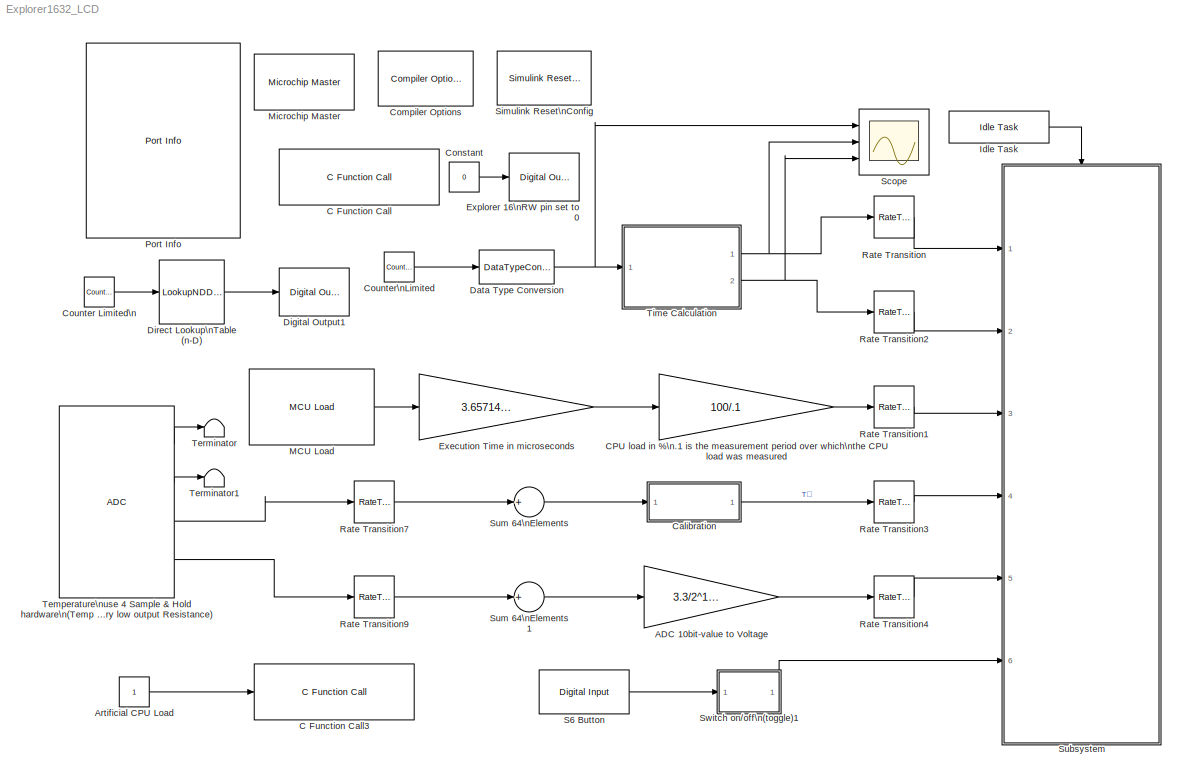
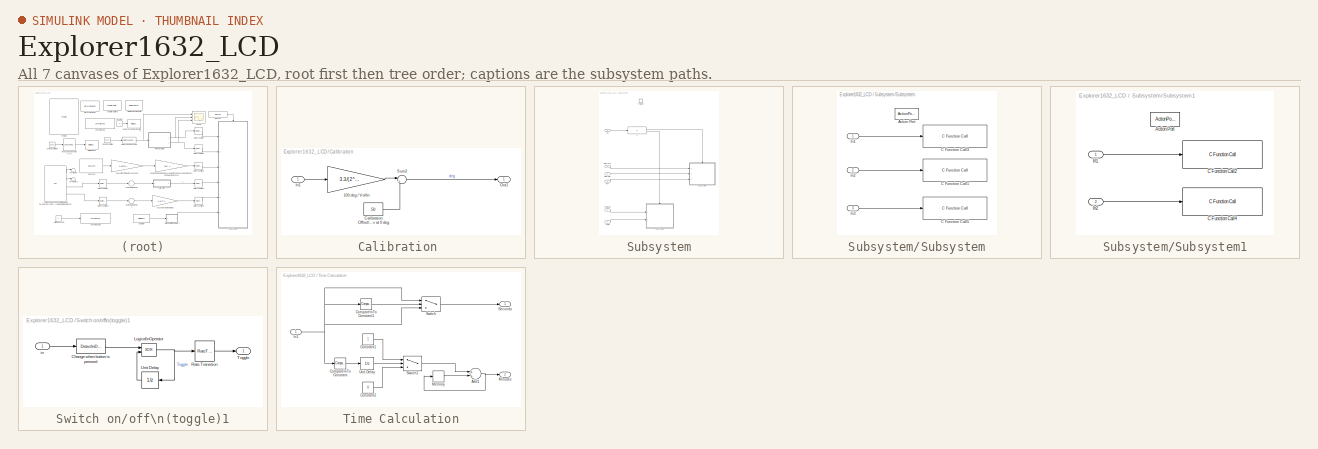
[diagram: thumbnail index - all 7 canvases of the model, root first then tree order]
MODEL Explorer1632_LCD
KIND model
BLOCK [Gain] ADC 10bit-value to Voltage
  Gain = 3.3/2^10 / 64
  OutDataTypeMode = double
  OutDataTypeStr = double
  ParamDataTypeStr = Inherit: Inherit via internal rule
  ParameterDataTypeMode = Inherit via internal rule
  SID = 243
  SaturateOnIntegerOverflow = off
BLOCK [Constant] Artificial CPU Load
  OutDataTypeMode = Inherit via back propagation
  OutDataTypeStr = Inherit: Inherit via back propagation
  SID = 239
BLOCK [Reference] C Function Call  REF=MCHP_Blockset/User Functions/C Function Call
  AddHeaderDeclaration = off
  DataCollected = s.chksm={ '168203-Apr-2017 17:13:43'};s.File1=reshape({ '  void  LCD_StartUp()','  void  PrintMinutes(unsigned int minutes)','  void  PrintSeconds(unsigned int seconds)','  void  PrintVoltage(double v)','  void  PrintTemperature(double temp)','  void  PrintCPU(double CPU_Load)'},1,6);
  FctReturnBlockOut = off
  Function1 = void LCD_StartUp()
  Function1Type = only once at power-up time
  ListFunctions1 = Custom Function
  MCHP_CRC = 1481661
  MCHP_MASTERLINK = Explorer1632_LCD/Microchip Master
  MCHP_PORT = {C Function LCD_StartUp}{CFct}10:1:B15;{C Function LCD_StartUp}{CFct}10:1:D4;{C Function LCD_StartUp}{CFct}10:1:E4;{C Function LCD_StartUp}{CFct}10:1:E5;{C Function LCD_StartUp}{CFct}10:1:E6;{C Function LCD_StartUp}{CFct}10:1:E7;
  ORDERING = None
  ParseFilesChkbx = on
  PinAnalogInput = []
  PinDigitalInput = []
  PinDigitalOutput = [B15 D4 E[4:7]]
  Ports = []
  SID = 54
  S_INPUT = []
  S_INPUT_Size = []
  S_ListCustomDatatype = S.S_ListCustomDatatype={};
  S_OUTPUT = []
  S_OUTPUT_Size = []
  SampleTime = 1
  SourceBlock = MCHP_Blockset/User Functions/C Function Call
  SourceType = C Function Call
  UserData = DataTag0
  UserDataPersistent = on
BLOCK [Reference] C Function Call3  REF=MCHP_Blockset/User Functions/C Function Call
  AddHeaderDeclaration = off
  DataCollected = 0
  Fct1BlockIn = t_us
  FctReturnBlockOut = off
  Function1 = extern void __delay_us(unsigned long t_us);
  Function1Type = when block is updated (default)
  ListFunctions1 = Custom Function
  MCHP_CRC = 972831
  MCHP_MASTERLINK = Explorer1632_LCD/Microchip Master
  ORDERING = None
  ParseFilesChkbx = off
  PinAnalogInput = []
  PinDigitalInput = []
  PinDigitalOutput = []
  Ports = [1]
  SID = 238
  S_INPUT = [7]
  S_INPUT_Size = [0  0  0  0  0  0  0  0  0  0]
  S_ListCustomDatatype = S.S_ListCustomDatatype={};
  S_OUTPUT = []
  S_OUTPUT_Size = []
  SampleTime = .001
  SourceBlock = MCHP_Blockset/User Functions/C Function Call
  SourceType = C Function Call
  UserData = DataTag1
  UserDataPersistent = on
BLOCK [Gain] CPU load in %\n.1 is the measurement period over which\nthe CPU load was measured
  Gain = 100/.1
  OutDataTypeMode = double
  OutDataTypeStr = double
  ParamDataTypeStr = Inherit: Inherit from 'Gain'
  ParameterDataTypeMode = Inherit from 'Gain'
  SID = 282
  SaturateOnIntegerOverflow = off
BLOCK [SubSystem] Calibration 
  FunctionWithSeparateData = off
  MaskHideContents = off
  MinAlgLoopOccurrences = off
  Opaque = off
  Ports = [1, 1]
  PropExecContextOutsideSubsystem = off
  RTWSystemCode = Auto
  RequestExecContextInheritance = off
  SID = 244
BLOCK [Gain] Calibration /100 deg // Volt\n
  Gain = 3.3/(2^16) * 100
  OutDataTypeMode = single
  OutDataTypeStr = single
  ParamDataTypeStr = Inherit: Inherit via internal rule
  ParameterDataTypeMode = Inherit via internal rule
  SID = 246
  SaturateOnIntegerOverflow = off
BLOCK [Constant] Calibration /Calibration Offset\n500 mv at 0 deg
  OutDataTypeMode = Inherit via back propagation
  OutDataTypeStr = Inherit: Inherit via back propagation
  SID = 247
  SampleTime = -1
  Value = 50
BLOCK [Inport] Calibration /In1
  IconDisplay = Port number
  SID = 245
BLOCK [Outport] Calibration /Out1
  IconDisplay = Port number
  SID = 249
BLOCK [Sum] Calibration /Sum2
  AccumDataTypeStr = Inherit: Same as first input
  IconShape = round
  InputSameDT = off
  Inputs = |+-
  OutDataTypeMode = Inherit via internal rule
  OutDataTypeStr = Inherit: Inherit via internal rule
  Ports = [2, 1]
  SID = 248
  SaturateOnIntegerOverflow = off
BLOCK [Reference] Compiler Options  REF=MCHP_Blockset/System Configuration/Compiler Options
  AssemblyListing = off
  COMP_LIST = Dynamic Options
  COMP_LIST_TXT = xc16 - v1.36
  DEBUG_INFO = off
  HEAP_SIZE = 0
  LATEST_CMPLR = on
  MAGGREGATE = off
  MCHP_MASTERLINK = Explorer1632_LCD/Microchip Master
  MCHP_MULTITHREAD_COMPILATION = on
  MCODE = is less than 32768 (faster)
  MCONST = in data memory
  MDATA = Use only memory below address 8192 (faster)
  MLARGEARRAY = off
  MPLAB_LINKLIB = default
  MPLAB_LINKLIB1 = default
  MSCALAR = Use only memory below address 8192 (faster)
  NO_EDS_WARN = on
  OMF = elf
  OPTIMIZATION_FLTO = on
  OPTIMIZATION_LEVEL = 1
  OPTIMIZATION_REORDER = off
  PRINT_STATISTICS = off
  PROCEDURAL_ABSTRACTION = off
  Ports = []
  Priority = 1
  ProduceHexOutput = off
  SID = 19
  SourceBlock = MCHP_Blockset/System Configuration/Compiler Options
  UNROLL_LOOPS = on
  USE_64BIT_DOUBLE = off
  UseCustom_LinkerScript = off
BLOCK [Constant] Constant
  OutDataType = fixdt(1, 16)
  OutDataTypeMode = Inherit via back propagation
  OutDataTypeStr = Inherit: Inherit via back propagation
  OutScaling = 2^0
  SID = 284
  Value = 0
BLOCK [Reference] Counter Limited\n  REF=simulink/Sources/Counter\nLimited
  FunctionWithSeparateData = off
  Ports = [0, 1]
  RTWMemSecDataConstants = Inherit from model
  RTWMemSecDataInternal = Inherit from model
  RTWMemSecDataParameters = Inherit from model
  RTWMemSecFuncExecute = Inherit from model
  RTWMemSecFuncInitTerm = Inherit from model
  SID = 240
  ShowPortLabels = FromPortIcon
  SourceBlock = simulink/Sources/Counter\nLimited
  SourceType = Counter Limited
  SystemSampleTime = -1
  tsamp = .08
  uplimit = 11
BLOCK [Reference] Counter\nLimited  REF=simulink/Sources/Counter\nLimited
  FunctionWithSeparateData = off
  Ports = [0, 1]
  RTWMemSecDataConstants = Inherit from model
  RTWMemSecDataInternal = Inherit from model
  RTWMemSecDataParameters = Inherit from model
  RTWMemSecFuncExecute = Inherit from model
  RTWMemSecFuncInitTerm = Inherit from model
  SID = 73
  ShowPortLabels = FromPortIcon
  SourceBlock = simulink/Sources/Counter\nLimited
  SourceType = Counter Limited
  SystemSampleTime = -1
  tsamp = 1
  uplimit = 59
BLOCK [DataTypeConversion] Data Type Conversion
  ConvertRealWorld = Stored Integer (SI)
  OutDataTypeMode = uint16
  OutDataTypeStr = uint16
  RndMeth = Floor
  SID = 74
  SaturateOnIntegerOverflow = off
BLOCK [Reference] Digital Output1  REF=MCHP_Blockset/Digital IO/Digital Output
  FunctionWithSeparateData = off
  MCHP_MASTERLINK = Explorer1632_LCD/Microchip Master
  ORDERING = None
  PACK = on
  PIN = [1:7]
  PORT = Dynamic Options
  PORT_TXT = A   [ 0  1  2  3  4  5  6  7  9  10  14  15 ]
  Ports = [1]
  READPREVIOUS = off
  RTWMemSecDataConstants = Inherit from model
  RTWMemSecDataInternal = Inherit from model
  RTWMemSecDataParameters = Inherit from model
  RTWMemSecFuncExecute = Inherit from model
  RTWMemSecFuncInitTerm = Inherit from model
  SID = 241
  SIMULTANEOUS = off
  SampleTime = -1
  ShowPortLabels = FromPortIcon
  SourceBlock = MCHP_Blockset/Digital IO/Digital Output
  SystemSampleTime = -1
BLOCK [LookupNDDirect] Direct Lookup\nTable (n-D)
  NumberOfTableDimensions = 1
  Ports = [1, 1]
  SID = 242
  Table = [ 2 4 8 16 32 64 128 64 32 16 8 4 ]
  TableDataTypeStr = uint16
BLOCK [Gain] Execution Time in microseconds
  Gain = 3.657142*1e-6
  OutDataTypeMode = double
  OutDataTypeStr = double
  ParamDataTypeStr = Inherit: Inherit from 'Gain'
  ParameterDataTypeMode = Inherit from 'Gain'
  SID = 251
  SaturateOnIntegerOverflow = off
BLOCK [Reference] Explorer 16\nRW pin set to 0  REF=MCHP_Blockset/Digital IO/Digital Output
  FunctionWithSeparateData = off
  MCHP_MASTERLINK = Explorer1632_LCD/Microchip Master
  ORDERING = None
  PACK = off
  PIN = 5
  PORT = Dynamic Options
  PORT_TXT = D   [ 0 : 15 ]
  Ports = [1]
  READPREVIOUS = off
  RTWMemSecDataConstants = Inherit from model
  RTWMemSecDataInternal = Inherit from model
  RTWMemSecDataParameters = Inherit from model
  RTWMemSecFuncExecute = Inherit from model
  RTWMemSecFuncInitTerm = Inherit from model
  SID = 283
  SIMULTANEOUS = off
  SampleTime = inf
  ShowPortLabels = FromPortIcon
  SourceBlock = MCHP_Blockset/Digital IO/Digital Output
  SystemSampleTime = -1
BLOCK [Reference] Idle Task  REF=MCHP_Blockset/System Functions/Idle Task
  MCHP_MASTERLINK = Explorer1632_LCD/Microchip Master
  Ports = [0, 1]
  SID = 86
  SourceBlock = MCHP_Blockset/System Functions/Idle Task
  SourceType = Idle Task (Call Simulink Subfunction)
BLOCK [Reference] MCU Load  REF=MCHP_Blockset/Profiling/MCU Load
  Info = Timer 1:  Resol: 3.657142857(us)  -  Max: 239.675(ms)
  MCHP_COMPILED_INFO = CompiledSampleTime= [0.10000000000000001   0 ];CompiledInportDataTypes=[ ];CompiledInportDataWidth=[];
  MCHP_MASTERLINK = Explorer1632_LCD/Microchip Master
  MCHP_TIMER_REQUEST = {MCU_Load}{MCU_Load}21:5:0:0:[]:16777216;
  MCHP_TIMER_RESULT = [1 65535 ]
  MCULoadMeasure = on
  MCULoadPin = Dynamic Options
  MCULoadPin_TXT = None
  Ports = [0, 1]
  SID = 252
  SampleTime = .1
  SourceBlock = MCHP_Blockset/Profiling/MCU Load
  SourceType = MCU Load (Profile execution time)
  TIMER_Resolution = Dynamic Options
  TIMER_Resolution_TXT = Resol: 3.657(us)  -  Max: 240(ms)
BLOCK [Reference] Microchip Master  REF=MCHP_Blockset/System Configuration/Microchip Master
  ACLKCON = Optimized for PWM resolution & ADC conversion speed
  ACTIV_PLL = on
  ACTIV_PLL_spd = on
  AIVTDIS = Disable Alternate Vector Table
  ALTADREF = Not used
  ALTCMPI = Not used
  ALTCVREF = Not used
  ALTI2C = I2C mapped to SDA1/SCL1 pins
  ALTI2C1 = SDA1/SCK1 pins are selected as the I/O pins for I2C1
  ALTI2C2 = SDA2/SCK2 pins are selected as the I/O pins for I2C2
  ALTI2C3 = I2C3 mapped to SDA3/SCL3 pins
  ALTPMP = Not used
  ALTQIO = QEA1; QEB1; INDX1 are selected as inputs to QEI1
  ALTRB6 = Not used
  ALTSS1 = SS1A is selected as the I/O pin for SPI1
  ALTVREF = Not used
  APL = Aux Flash Code protect is disabled
  APLK = Aux Flash Write Protection and Code Protection is Disabled
  ATMOD8 = Not used
  AWRP = Auxiliary program memory is not write-protected
  BACKBUG = Not used
  BKBUG = Not used
  BODENV = 2.7V
  BOOTISA = Boot code and Exception code is MIPS32
  BOREN = Disable
  BOREN0 = Enabled
  BOREN1 = Not used
  BORV = Not used
  BSEN = No Boot Segment
  BSLIM = Not used
  BSS = No Boot program Flash segment
  BSS2 = No Boot Segment
  BTMODE = Not used
  BTSWP = BOOTSWP instruction is disabled
  BUSYFLAG = Dynamic Options
  BUSYFLAG_TXT = A0 / Pin[17]
  BWP = Not used
  BWRP = Boot Segment may be written
  CMPPOL0 = Hysteresis is applied to falling edge
  CMPPOL1 = Hysteresis is applied to falling edge
  COE = Not used
  CP = Protection Disabled
  CSEQ = Not used
  CSS = No Protection (other than CWRP)
  CTXT1 = Not Assigned
  CTXT2 = Not Assigned
  CWRP = Configuration Segment may be written
  DBCC = No Cross Connection between DAC outputs
  DBGPER = Allow CPU access to all permission regions
  DEBUG = Debugger is disabled
  DFMCY = Not used
  DISUVREG = Not used
  DMTCNT = 2^31 (2147483648)
  DMTEN = Dead Man Timer is Disabled and can be enabled by software
  DMTINTV = Window/Interval value is 127/128 counter value
  DMTIVT = Not used
  DSBOREN = Enable ZPBOR during Deep Sleep Mode
  DSLPBOR = Not used
  DSSWEN = Not used
  DSWDTEN = Enable DSWDT during Deep Sleep Mode
  DSWDTOSC = Select LPRC as DSWDT Reference clock
  DSWDTPS = 1:2^36
  EBS = No Boot EEPROM
  EJTAGBEN = Normal EJTAG functionality
  ESS = No Segment Data EEPROM
  EXTDDRSIZE = Not used
  FCANIO = Not used
  FCKSM = Clock switching is enabled;Fail-safe Clock Monitor is disabled
  FCKSMEN = Sw Disabled; Mon Disabled
  FDMTEN = Deadman Timer is disabled
  FECCCON = ECC and Dynamic ECC are disabled (ECCCON bits are writable)
  FETHIO = Default Ethernet I/O
  FMIIEN = MII Enabled
  FNOSC = Primary Oscillator (XT; HS; EC)
  FOS = Internal Fast RC
  FOSFPR = HS3 w/PLL 16x
  FPBDIV = Not used
  FPLLICLK = FRC is input to the System PLL
  FPLLIDIV = 8x Divider
  FPLLMUL = Not used
  FPLLMULT = PLL Multiply by 128
  FPLLODIV = 32x Divider
  FPLLRNG = 34-68 MHz Input
  FPR = ECIO w/ PLL 16x
  FPWRT = 128ms
  FRANGE = High Range
  FSLEEP = Flash is powered down when the device is in Sleep mode
  FSOSCEN = Enable SOSC
  FSRSSEL = Not used
  FUSBIDIO = Controlled by the USB Module
  FVBUSONIO = Not used
  FWDTEN = Disable
  FWDTWINSZ = Window size is 25%
  FWPSA = 1:512
  FWPSA0 = 1:128
  FWPSB = 1:16
  GCP = Disable
  GSS = General Segment Code protect is Disabled
  GSS0 = Not used
  GSSK = General Segment Write Protection and Code Protection is Disabled
  GWRP = General Segment may be written
  HPOL = Active High
  HYST0 = 45 mV Hysteresis
  HYST1 = 45 mV Hysteresis
  I2C1SEL = Not used
  I2C2SEL = Not used
  ICESEL = Communicate on PGEC1/PGED1
  ICS = Communicate on PGEC1 and PGED1
  IESO = Disable
  INT_PRIORITY_DMA = 0
  IOL1WAY = Allow only one reconfiguration
  JTAGEN = Disable
  LPCFG = Not used
  LPOL = Active High
  LPRCSEL = Not used
  LVRCFG = Not used
  MCHPVAR = MCHP.fcy.MIPS=70000000;MCHP.fcy.SYSCLK=70000000;MCHP.fcy.ADC=70000000;MCHP.fcy.Comparator=70000000;MCHP.fcy.I2C=70000000;MCHP.fcy.SPI=70000000;MCHP.fcy.UART=70000000;MCHP.fcy.Timers=70000000;MCHP.fcy.OC=70000000;MCHP.fcy.IC=70000000;MCHP.fcy.Ports=70000000;MCHP.fcy.QEI=70000000;MCHP.PowerSave=0;MCHP.TimeStepFactor=MCHP_Fun.Hex2num('3FF004AE5F60D755');MCHP.TimeStep_Timer=-1;MCHP.NTIMERS=9;MCHP.id.n...<+13926ch>
  MCHP_CRC = 6245820
  MCHP_PLLRegisters = [5    243  16385     -1     -1]
  MCHP_PORT = {Busy Flag}{Busy}0:1:A0;
  MCHP_TIMER_RESULT = [ ]
  MCLRE = Enabled
  MIPS = 70 * 1e6
  MIPS_DESIRED = 70e+06
  MIPS_DESIRED_spd = 70e+06
  ON = Not used
  OSCILLATOR_SELECT = Crystal / Ceramic resonator
  OSCILLATOR_SELECT_spd = Crystal / Ceramic resonator
  OSCIOFCN = Not used
  OSCIOFNC = general purpose digital I/O pin
  PGL1WAY = Allow only one reconfiguration
  PICREF = 33EP512MU810
  PLL96MHZ = Not used
  PLLDIV = Not used
  PLLKEN = Clock switch to PLL source will wait until the PLL lock signal is valid.
  PLLSS = Not used
  PLL_96MHZ = Not used
  PMDL1WAY = Allow only one reconfiguration
  POSCBOOST = Boost the kick start of the oscillator
  POSCFREQ = Not used
  POSCGAIN = 2x gain setting
  POSCMD = XT Crystal Oscillator Mode
  POSCMOD = Primary Oscillator Disabled
  POWERSAVE = off
  PWMLOCK = PWM registers may be written without key sequence
  PWMPIN = Control with PORT/TRIS regs
  PWP = Not used
  PWRTEN = Not used
  Ports = []
  Priority = 1
  QUARTZ = 8e+06
  QUARTZ_spd = 8e+06
  RBS = No Boot RAM
  RES = Not used
  RES1 = Not used
  RES2 = Not used
  RESERVED1 = Not used
  RETCFG = Not used
  RSS = No Secure RAM
  RSTPRI = Device will obtain reset instruction from Primary flash
  RTCBAT = Not used
  RTCOSC = Not used
  SEQNUM = Not used
  SID = 18
  SMCLR = MCLR pin generates a normal system Reset
  SOSCBOOST = Boost the kick start of the oscillator
  SOSCGAIN = 2x gain setting
  SOSCSEL = Not used
  SOSCSRC = Not used
  SSS = No Secure Segment
  SWRP = Secure segment may be written
  SourceBlock = MCHP_Blockset/System Configuration/Microchip Master
  TEMP = Not used
  TIMESTEP_REF = ADC  ( 0.001s + [0.11429%] ==> 0.0010011s )
  TRCEN = Trace features in the CPU are enabled
  TSEQ = Not used
  UPLLEN = USB PLL Disabled
  UPLLFSEL = USB PLL input is 24 MHz
  UPLLIDIV = Not used
  USERID = Not used
  VBTBOR = Not used
  WDT = Disable
  WDTCLK = Not used
  WDTCMX = Not used
  WDTEN = Disable
  WDTPOST = 1:32768
  WDTPRE = 1:128
  WDTPS = 1:32768
  WDTSPGM = WDT stops during Flash programming
  WDTWIN = WDT Window is 25% of WDT period
  WINDIS = Watchdog Timer in Non-Window mode
  WPCFG = Not used
  WPDIS = Not used
  WPEND = Not used
  WPFP = Not used
  WUTSEL = Not used
  WWDTEN = Non-Window mode
  XTBST = Boost the kick-start
  XTCFG = 24-32 MHz crystals
  nSEQNUM = Not used
BLOCK [Reference] Port Info  REF=MCHP_Blockset/System Info/Port Info
  MCHP_MASTERLINK = Explorer1632_LCD/Microchip Master
  Ports = []
  SID = 237
  SourceBlock = MCHP_Blockset/System Info/Port Info
BLOCK [RateTransition] Rate Transition
  Deterministic = off
  OutPortSampleTimeOpt = Inherit
  SID = 92
BLOCK [RateTransition] Rate Transition1
  Deterministic = off
  OutPortSampleTimeOpt = Inherit
  SID = 253
BLOCK [RateTransition] Rate Transition2
  Deterministic = off
  OutPortSampleTimeOpt = Inherit
  SID = 150
BLOCK [RateTransition] Rate Transition3
  Deterministic = off
  OutPortSampleTimeOpt = Inherit
  SID = 254
BLOCK [RateTransition] Rate Transition4
  Deterministic = off
  OutPortSampleTimeOpt = Inherit
  SID = 255
BLOCK [RateTransition] Rate Transition7
  Deterministic = off
  OutPortSampleTime = 0.2
  SID = 256
BLOCK [RateTransition] Rate Transition9
  Deterministic = off
  OutPortSampleTime = [0.2 0.1]
  SID = 257
BLOCK [Reference] S6 Button  REF=MCHP_Blockset/Digital IO/Digital Input
  MCHP_MASTERLINK = Explorer1632_LCD/Microchip Master
  MCHP_PORT = {Digital In}{DIN}2:0:D13;
  ORDERING = None
  PACK = off
  PIN = 13
  PORT = Dynamic Options
  PORT_TXT = D   [ 0 : 15 ]
  Ports = [0, 1]
  SID = 258
  SIMULTANEOUS = off
  SampleTime = .01
  SourceBlock = MCHP_Blockset/Digital IO/Digital Input
  SourceType = Input driver for Digital Input Pins
BLOCK [Scope] Scope
  DataFormat = StructureWithTime
  Floating = off
  LimitDataPoints = off
  NumInputPorts = 3
  Ports = [3]
  SID = 151
  YMax = 66.375~62.70681~3.375
  YMin = -7.375~-4.47906~-0.375
BLOCK [Reference] Simulink Reset\nConfig  REF=MCHP_Blockset/System Configuration/Simulink Reset\nConfig
  MCHP_MASTERLINK = 0
  Ports = []
  SID = 49
  SourceBlock = MCHP_Blockset/System Configuration/Simulink Reset\nConfig
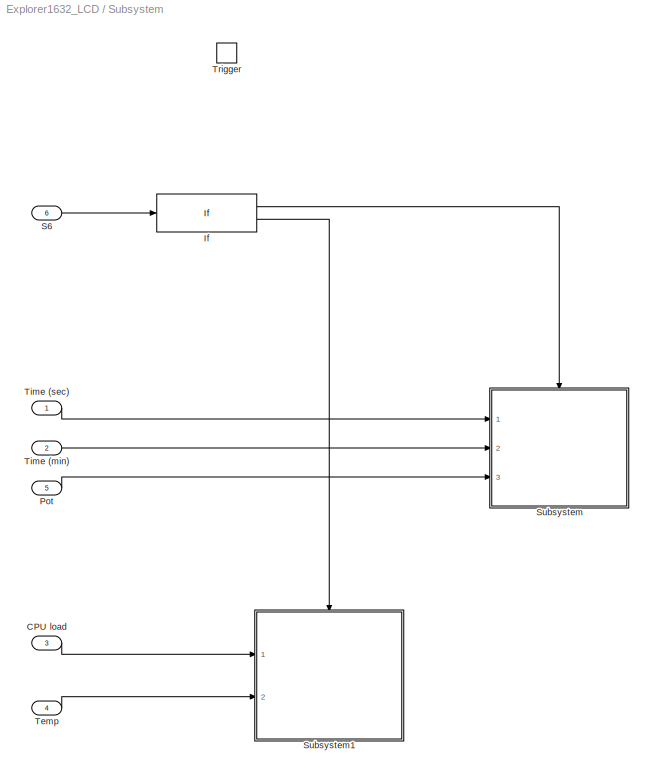
BLOCK [SubSystem] Subsystem
  FunctionWithSeparateData = off
  MaskHideContents = off
  MinAlgLoopOccurrences = off
  Opaque = off
  Ports = [6, 0, 0, 1]
  PropExecContextOutsideSubsystem = off
  RTWSystemCode = Auto
  RequestExecContextInheritance = off
  SID = 89
BLOCK [Inport] Subsystem/CPU load
  IconDisplay = Port number
  Port = 3
  SID = 149
BLOCK [If] Subsystem/If
  IfExpression = u1 == 1
  Ports = [1, 2]
  SID = 274
BLOCK [Inport] Subsystem/Pot
  IconDisplay = Port number
  Port = 5
  SID = 196
BLOCK [Inport] Subsystem/S6
  IconDisplay = Port number
  Port = 6
  SID = 269
BLOCK [SubSystem] Subsystem/Subsystem
  FunctionWithSeparateData = off
  MaskHideContents = off
  MinAlgLoopOccurrences = off
  Opaque = off
  Ports = [3, 0, 0, 0, 0, 0, 0, 1]
  PropExecContextOutsideSubsystem = off
  RTWSystemCode = Auto
  RequestExecContextInheritance = off
  SID = 270
BLOCK [ActionPort] Subsystem/Subsystem/Action Port
  ActionType = then
  SID = 275
BLOCK [Reference] Subsystem/Subsystem/C Function Call1  REF=MCHP_Blockset/User Functions/C Function Call
  AddHeaderDeclaration = on
  DataCollected = s.chksm={ '132103-Apr-2017 16:24:15'};s.File1=reshape({ '  void  ShowOff()','  void  PrintMinutes(unsigned int minutes)','  void  PrintSeconds(unsigned int seconds)','  void  PrintVoltage(double v)','  void  PrintCPU(double CPU_Load)','  void  PrintTemperature(double temp)'},1,6);  <repeated x3 — deduplicated; at blocks: C Function Call1, C Function Call3, C Function Call5>
  Fct1BlockIn = minutes
  FctReturnBlockOut = off
  Function1 = void PrintMinutes(unsigned int value)
  Function1Type = when block is updated (default)
  ListFunctions1 = Custom Function
  MCHP_CRC = 1289421
  MCHP_MASTERLINK = Explorer1632_LCD/Microchip Master
  ORDERING = None
  ParseFilesChkbx = on
  PinAnalogInput = []
  PinDigitalInput = []
  PinDigitalOutput = []
  Ports = [1]
  SID = 55
  S_INPUT = [5]
  S_INPUT_Size = [0  0  0  0  0  0  0  0  0  0]
  S_ListCustomDatatype = S.S_ListCustomDatatype={};
  S_OUTPUT = []
  S_OUTPUT_Size = []
  SampleTime = -1
  SourceBlock = MCHP_Blockset/User Functions/C Function Call
  SourceType = C Function Call
  UserData = DataTag2
  UserDataPersistent = on
BLOCK [Reference] Subsystem/Subsystem/C Function Call3  REF=MCHP_Blockset/User Functions/C Function Call
  AddHeaderDeclaration = on
  Fct1BlockIn = seconds
  FctReturnBlockOut = off
  Function1 = void PrintSeconds(unsigned int seconds)
  Function1Type = when block is updated (default)
  ListFunctions1 = Custom Function
  MCHP_CRC = 1291597
  MCHP_MASTERLINK = Explorer1632_LCD/Microchip Master
  ORDERING = None
  ParseFilesChkbx = on
  PinAnalogInput = []
  PinDigitalInput = []
  PinDigitalOutput = []
  Ports = [1]
  SID = 119
  S_INPUT = [5]
  S_INPUT_Size = [0  0  0  0  0  0  0  0  0  0]
  S_ListCustomDatatype = S.S_ListCustomDatatype={};
  S_OUTPUT = []
  S_OUTPUT_Size = []
  SampleTime = -1
  SourceBlock = MCHP_Blockset/User Functions/C Function Call
  SourceType = C Function Call
  UserData = DataTag3
  UserDataPersistent = on
BLOCK [Reference] Subsystem/Subsystem/C Function Call5  REF=MCHP_Blockset/User Functions/C Function Call
  AddHeaderDeclaration = on
  Fct1BlockIn = v
  FctReturnBlockOut = off
  Function1 = void PrintVoltage(double v)
  Function1Type = when block is updated (default)
  ListFunctions1 = Custom Function
  MCHP_CRC = 1223165
  MCHP_MASTERLINK = Explorer1632_LCD/Microchip Master
  ORDERING = None
  ParseFilesChkbx = on
  PinAnalogInput = []
  PinDigitalInput = []
  PinDigitalOutput = []
  Ports = [1]
  SID = 197
  S_INPUT = [0]
  S_INPUT_Size = [0  0  0  0  0  0  0  0  0  0]
  S_ListCustomDatatype = S.S_ListCustomDatatype={};
  S_OUTPUT = []
  S_OUTPUT_Size = []
  SampleTime = -1
  SourceBlock = MCHP_Blockset/User Functions/C Function Call
  SourceType = C Function Call
  UserData = DataTag4
  UserDataPersistent = on
BLOCK [Inport] Subsystem/Subsystem/In1
  IconDisplay = Port number
  SID = 271
BLOCK [Inport] Subsystem/Subsystem/In2
  IconDisplay = Port number
  Port = 2
  SID = 272
BLOCK [Inport] Subsystem/Subsystem/In3
  IconDisplay = Port number
  Port = 3
  SID = 273
BLOCK [SubSystem] Subsystem/Subsystem1
  FunctionWithSeparateData = off
  MaskHideContents = off
  MinAlgLoopOccurrences = off
  Opaque = off
  Ports = [2, 0, 0, 0, 0, 0, 0, 1]
  PropExecContextOutsideSubsystem = off
  RTWSystemCode = Auto
  RequestExecContextInheritance = off
  SID = 276
BLOCK [ActionPort] Subsystem/Subsystem1/Action Port
  ActionType = else
  SID = 279
BLOCK [Reference] Subsystem/Subsystem1/C Function Call2  REF=MCHP_Blockset/User Functions/C Function Call
  AddHeaderDeclaration = on
  DataCollected = s.chksm={ '115614-Feb-2017 12:54:00'};s.File1=reshape({ '  void  ShowOff()','  void  PrintCount(unsigned int value)','  void  PrintCPU(double CPU_Load)','  void  PrintInteger(unsigned int CPU_Load)'},1,4);
  Fct1BlockIn = CPU_Load
  FctReturnBlockOut = off
  Function1 = void PrintCPU(double CPU_Load)
  Function1Type = when block is updated (default)
  ListFunctions1 = Custom Function
  MCHP_CRC = 1068656
  MCHP_MASTERLINK = Explorer1632_LCD/Microchip Master
  ORDERING = None
  ParseFilesChkbx = on
  PinAnalogInput = []
  PinDigitalInput = []
  PinDigitalOutput = []
  Ports = [1]
  SID = 83
  S_INPUT = [0]
  S_INPUT_Size = [0  0  0  0  0  0  0  0  0  0]
  S_ListCustomDatatype = S.S_ListCustomDatatype={};
  S_OUTPUT = []
  S_OUTPUT_Size = []
  SampleTime = -1
  SourceBlock = MCHP_Blockset/User Functions/C Function Call
  SourceType = C Function Call
  UserData = DataTag5
  UserDataPersistent = on
BLOCK [Reference] Subsystem/Subsystem1/C Function Call4  REF=MCHP_Blockset/User Functions/C Function Call
  AddHeaderDeclaration = on
  DataCollected = s.chksm={ '148414-Feb-2017 17:33:09'};s.File1=reshape({ '  void  ShowOff()','  void  PrintMinutes(unsigned int value)','  void  PrintSeconds(unsigned int value)','  void  PrintCPU(double CPU_Load)','  void  PrintInteger(unsigned int CPU_Load)','  void  PrintTemperature(double temp)'},1,6);
  Fct1BlockIn = temp
  FctReturnBlockOut = off
  Function1 = void PrintTemperature(double temp)
  Function1Type = when block is updated (default)
  ListFunctions1 = Custom Function
  MCHP_CRC = 1289936
  MCHP_MASTERLINK = Explorer1632_LCD/Microchip Master
  ORDERING = None
  ParseFilesChkbx = on
  PinAnalogInput = []
  PinDigitalInput = []
  PinDigitalOutput = []
  Ports = [1]
  SID = 190
  S_INPUT = [0]
  S_INPUT_Size = [0  0  0  0  0  0  0  0  0  0]
  S_ListCustomDatatype = S.S_ListCustomDatatype={};
  S_OUTPUT = []
  S_OUTPUT_Size = []
  SampleTime = -1
  SourceBlock = MCHP_Blockset/User Functions/C Function Call
  SourceType = C Function Call
  UserData = DataTag6
  UserDataPersistent = on
BLOCK [Inport] Subsystem/Subsystem1/In1
  IconDisplay = Port number
  SID = 277
BLOCK [Inport] Subsystem/Subsystem1/In2
  IconDisplay = Port number
  Port = 2
  SID = 278
BLOCK [Inport] Subsystem/Temp
  IconDisplay = Port number
  Port = 4
  SID = 189
BLOCK [Inport] Subsystem/Time (min)
  IconDisplay = Port number
  Port = 2
  SID = 147
BLOCK [Inport] Subsystem/Time (sec)
  IconDisplay = Port number
  SID = 90
BLOCK [TriggerPort] Subsystem/Trigger
  PortDimensions = 1
  Ports = []
  SID = 91
  StatesWhenEnabling = held
  TriggerType = function-call
BLOCK [Sum] Sum 64\nElements
  InputSameDT = off
  Inputs = +
  OutDataTypeMode = Inherit via internal rule
  OutDataTypeStr = Inherit: Inherit via internal rule
  Ports = [1, 1]
  SID = 259
  SaturateOnIntegerOverflow = off
BLOCK [Sum] Sum 64\nElements1
  InputSameDT = off
  Inputs = +
  OutDataTypeMode = Inherit via internal rule
  OutDataTypeStr = Inherit: Inherit via internal rule
  Ports = [1, 1]
  SID = 260
  SaturateOnIntegerOverflow = off
BLOCK [SubSystem] Switch on//off\n(toggle)1
  FunctionWithSeparateData = off
  MaskHideContents = off
  MinAlgLoopOccurrences = off
  Opaque = off
  Ports = [1, 1]
  PropExecContextOutsideSubsystem = off
  RTWSystemCode = Auto
  RequestExecContextInheritance = off
  SID = 261
BLOCK [Reference] Switch on//off\n(toggle)1/Change when button is pressed  REF=simulink/Logic and Bit\nOperations/Detect\nDecrease
  FunctionWithSeparateData = off
  Ports = [1, 1]
  RTWMemSecDataConstants = Inherit from model
  RTWMemSecDataInternal = Inherit from model
  RTWMemSecDataParameters = Inherit from model
  RTWMemSecFuncExecute = Inherit from model
  RTWMemSecFuncInitTerm = Inherit from model
  SID = 263
  ShowPortLabels = FromPortIcon
  SourceBlock = simulink/Logic and Bit\nOperations/Detect\nDecrease
  SourceType = Detect Decrease
  SystemSampleTime = -1
  vinit = 0.0
BLOCK [Logic] Switch on//off\n(toggle)1/Logical\nOperator
  AllPortsSameDT = off
  Operator = XOR
  OutDataTypeMode = boolean
  OutDataTypeStr = boolean
  Ports = [2, 1]
  SID = 264
BLOCK [RateTransition] Switch on//off\n(toggle)1/Rate Transition
  Deterministic = off
  Integrity = off
  SID = 265
BLOCK [Outport] Switch on//off\n(toggle)1/Toggle
  IconDisplay = Port number
  SID = 267
BLOCK [UnitDelay] Switch on//off\n(toggle)1/Unit Delay
  SID = 266
  SampleTime = -1
BLOCK [Inport] Switch on//off\n(toggle)1/in
  IconDisplay = Port number
  SID = 262
BLOCK [Reference] Temperature\nuse 4 Sample & Hold hardware\n(Temp sensor has very low output Resistance)  REF=MCHP_Blockset/Analog IO/ADC
  ADC_DMA_CHANNEL = use DMA Channel 0
  ADC_R = < 1    kOhm
  ADC_REF = 1
  ADC_TIMING = [0.0010011428571428571]
  ADxCSS = [5]
  FORM = 0000 dddd dddd dddd ==> Unsigned integer
  Info = Total Time for Sample & Conversion : 0.0010011s including 5.3571e-006s (x 64) sample time. Difference with time step is : 1.1429e-006s
  MCHP_MASTERLINK = Explorer1632_LCD/Microchip Master
  MCHP_PORT = {Analog Input 3}{AN3}15:2:B3;{Analog Input 4}{AN4}15:2:B4;{Analog Input 5}{AN5}15:2:B5;
  MUXA_CH0N = off
  MUXA_CH123 = Dynamic Options
  MUXA_CH123_TXT = AN3 : AN4 : AN5
  MUXB_CH0 = AN1
  MUXB_CH0N = on
  MUXB_CH123 = Dynamic Options
  MUXB_CH123_TXT = AN0 : AN1 : AN2
  Mode = 10 bits (allows exact simultaneous sampling)
  Ports = [0, 4]
  Priority = 5
  SID = 268
  SIMULTANEOUS = Simultaneously on all Channels
  SSRC_SSRCG = Dynamic Options
  SSRC_SSRCG_TXT = 6
  SampleTime = 0.001
  SequenceRepeat = 64
  SequenceTiming = are stretcheded to fit exactly previous time step
  SourceBlock = MCHP_Blockset/Analog IO/ADC
  Trig_TimeStep = with each update of the ADC block output
  Update_BlockOutput = After all trig and conversion sequence
  nSAMPLECHANNELS = CH0 : CH1 : CH2 : CH3
  nSAMPLECHANNELS_12bits = CH0 only
BLOCK [Terminator] Terminator
  SID = 280
BLOCK [Terminator] Terminator1
  SID = 281
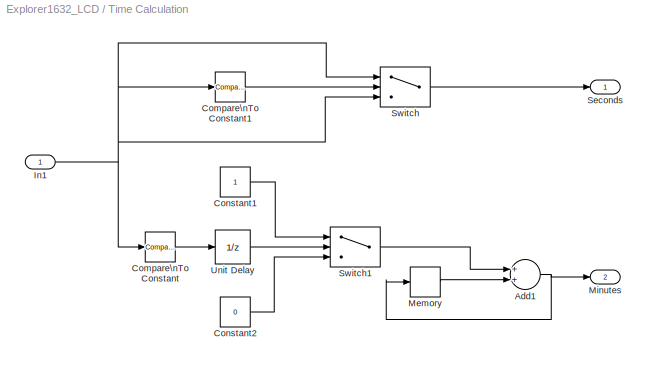
BLOCK [SubSystem] Time Calculation
  FunctionWithSeparateData = off
  MaskHideContents = off
  MinAlgLoopOccurrences = off
  Opaque = off
  Ports = [1, 2]
  PropExecContextOutsideSubsystem = off
  RTWSystemCode = Reusable function
  RequestExecContextInheritance = off
  SID = 143
  TreatAsAtomicUnit = on
BLOCK [Sum] Time Calculation/Add1
  AccumDataTypeStr = uint16
  InputSameDT = off
  OutDataTypeMode = Inherit via internal rule
  OutDataTypeStr = Inherit: Inherit via internal rule
  Ports = [2, 1]
  SID = 129
  SaturateOnIntegerOverflow = off
BLOCK [Reference] Time Calculation/Compare\nTo Constant  REF=simulink/Logic and Bit\nOperations/Compare\nTo Constant
  FunctionWithSeparateData = off
  LogicOutDataTypeMode = boolean
  Ports = [1, 1]
  RTWMemSecDataConstants = Inherit from model
  RTWMemSecDataInternal = Inherit from model
  RTWMemSecDataParameters = Inherit from model
  RTWMemSecFuncExecute = Inherit from model
  RTWMemSecFuncInitTerm = Inherit from model
  SID = 113
  ShowPortLabels = FromPortIcon
  SourceBlock = simulink/Logic and Bit\nOperations/Compare\nTo Constant
  SourceType = Compare To Constant
  SystemSampleTime = -1
  ZeroCross = on
  const = 59
  relop = >=
BLOCK [Reference] Time Calculation/Compare\nTo Constant1  REF=simulink/Logic and Bit\nOperations/Compare\nTo Constant
  FunctionWithSeparateData = off
  LogicOutDataTypeMode = boolean
  Ports = [1, 1]
  RTWMemSecDataConstants = Inherit from model
  RTWMemSecDataInternal = Inherit from model
  RTWMemSecDataParameters = Inherit from model
  RTWMemSecFuncExecute = Inherit from model
  RTWMemSecFuncInitTerm = Inherit from model
  SID = 133
  ShowPortLabels = FromPortIcon
  SourceBlock = simulink/Logic and Bit\nOperations/Compare\nTo Constant
  SourceType = Compare To Constant
  SystemSampleTime = -1
  ZeroCross = on
  const = 59
  relop = <=
BLOCK [Constant] Time Calculation/Constant1
  SID = 138
  SampleTime = -1
BLOCK [Constant] Time Calculation/Constant2
  OutDataTypeMode = Inherit via back propagation
  OutDataTypeStr = Inherit: Inherit via back propagation
  SID = 139
  SampleTime = -1
  Value = 0
BLOCK [Inport] Time Calculation/In1
  IconDisplay = Port number
  SID = 144
BLOCK [Memory] Time Calculation/Memory
  InheritSampleTime = on
  LinearizeAsDelay = on
  SID = 132
BLOCK [Outport] Time Calculation/Minutes
  IconDisplay = Port number
  Port = 2
  SID = 146
BLOCK [Outport] Time Calculation/Seconds
  IconDisplay = Port number
  SID = 145
BLOCK [Switch] Time Calculation/Switch
  Criteria = u2 > Threshold
  InputSameDT = off
  OutDataTypeMode = uint16
  OutDataTypeStr = uint16
  SID = 135
  SaturateOnIntegerOverflow = off
BLOCK [Switch] Time Calculation/Switch1
  Criteria = u2 > Threshold
  InputSameDT = off
  OutDataTypeMode = uint16
  OutDataTypeStr = uint16
  SID = 137
  SaturateOnIntegerOverflow = off
BLOCK [UnitDelay] Time Calculation/Unit Delay
  SID = 157
  SampleTime = -1
LINE ADC 10bit-value to Voltage:1 -> Rate Transition4:1
LINE Artificial CPU Load:1 -> C Function Call3:1
LINE CPU load in %\n.1 is the measurement period over which\nthe CPU load was measured:1 -> Rate Transition1:1
LINE Calibration /100 deg // Volt\n:1 -> Calibration /Sum2:1
LINE Calibration /Calibration Offset\n500 mv at 0 deg:1 -> Calibration /Sum2:2
LINE Calibration /In1:1 -> Calibration /100 deg // Volt\n:1
LINE Calibration /Sum2:1 -> Calibration /Out1:1
LINE Calibration :1 -> Rate Transition3:1
LINE Constant:1 -> Explorer 16\nRW pin set to 0:1
LINE Counter Limited\n:1 -> Direct Lookup\nTable (n-D):1
LINE Counter\nLimited:1 -> Data Type Conversion:1
NET Data Type Conversion:1 -> Scope:1, Time Calculation:1
LINE Direct Lookup\nTable (n-D):1 -> Digital Output1:1
LINE Execution Time in microseconds:1 -> CPU load in %\n.1 is the measurement period over which\nthe CPU load was measured:1
LINE Idle Task:1 -> Subsystem:trigger
LINE MCU Load:1 -> Execution Time in microseconds:1
LINE Rate Transition1:1 -> Subsystem:3
LINE Rate Transition2:1 -> Subsystem:2
LINE Rate Transition3:1 -> Subsystem:4
LINE Rate Transition4:1 -> Subsystem:5
LINE Rate Transition7:1 -> Sum 64\nElements:1
LINE Rate Transition9:1 -> Sum 64\nElements1:1
LINE Rate Transition:1 -> Subsystem:1
LINE S6 Button:1 -> Switch on//off\n(toggle)1:1
LINE Subsystem/CPU load:1 -> Subsystem/Subsystem1:1
LINE Subsystem/If:1 -> Subsystem/Subsystem:ifaction
LINE Subsystem/If:2 -> Subsystem/Subsystem1:ifaction
LINE Subsystem/Pot:1 -> Subsystem/Subsystem:3
LINE Subsystem/S6:1 -> Subsystem/If:1
LINE Subsystem/Subsystem/In1:1 -> Subsystem/Subsystem/C Function Call3:1
LINE Subsystem/Subsystem/In2:1 -> Subsystem/Subsystem/C Function Call1:1
LINE Subsystem/Subsystem/In3:1 -> Subsystem/Subsystem/C Function Call5:1
LINE Subsystem/Subsystem1/In1:1 -> Subsystem/Subsystem1/C Function Call2:1
LINE Subsystem/Subsystem1/In2:1 -> Subsystem/Subsystem1/C Function Call4:1
LINE Subsystem/Temp:1 -> Subsystem/Subsystem1:2
LINE Subsystem/Time (min):1 -> Subsystem/Subsystem:2
LINE Subsystem/Time (sec):1 -> Subsystem/Subsystem:1
LINE Sum 64\nElements1:1 -> ADC 10bit-value to Voltage:1
LINE Sum 64\nElements:1 -> Calibration :1
LINE Switch on//off\n(toggle)1/Change when button is pressed:1 -> Switch on//off\n(toggle)1/Logical\nOperator:1
NET Switch on//off\n(toggle)1/Logical\nOperator:1 -> Switch on//off\n(toggle)1/Rate Transition:1, Switch on//off\n(toggle)1/Unit Delay:1
LINE Switch on//off\n(toggle)1/Rate Transition:1 -> Switch on//off\n(toggle)1/Toggle:1
LINE Switch on//off\n(toggle)1/Unit Delay:1 -> Switch on//off\n(toggle)1/Logical\nOperator:2
LINE Switch on//off\n(toggle)1/in:1 -> Switch on//off\n(toggle)1/Change when button is pressed:1
LINE Switch on//off\n(toggle)1:1 -> Subsystem:6
LINE Temperature\nuse 4 Sample & Hold hardware\n(Temp sensor has very low output Resistance):1 -> Terminator:1
LINE Temperature\nuse 4 Sample & Hold hardware\n(Temp sensor has very low output Resistance):2 -> Terminator1:1
LINE Temperature\nuse 4 Sample & Hold hardware\n(Temp sensor has very low output Resistance):3 -> Rate Transition7:1
LINE Temperature\nuse 4 Sample & Hold hardware\n(Temp sensor has very low output Resistance):4 -> Rate Transition9:1
NET Time Calculation/Add1:1 -> Time Calculation/Memory:1, Time Calculation/Minutes:1
LINE Time Calculation/Compare\nTo Constant1:1 -> Time Calculation/Switch:2
LINE Time Calculation/Compare\nTo Constant:1 -> Time Calculation/Unit Delay:1
LINE Time Calculation/Constant1:1 -> Time Calculation/Switch1:1
LINE Time Calculation/Constant2:1 -> Time Calculation/Switch1:3
NET Time Calculation/In1:1 -> Time Calculation/Compare\nTo Constant1:1, Time Calculation/Compare\nTo Constant:1, Time Calculation/Switch:1, Time Calculation/Switch:3
LINE Time Calculation/Memory:1 -> Time Calculation/Add1:2
LINE Time Calculation/Switch1:1 -> Time Calculation/Add1:1
LINE Time Calculation/Switch:1 -> Time Calculation/Seconds:1
LINE Time Calculation/Unit Delay:1 -> Time Calculation/Switch1:2
NET Time Calculation:1 -> Rate Transition:1, Scope:2
NET Time Calculation:2 -> Rate Transition2:1, Scope:3
note: NET lines group one-source signal fan-out (src -> all destinations, sorted); 1:1 wires keep LINE
